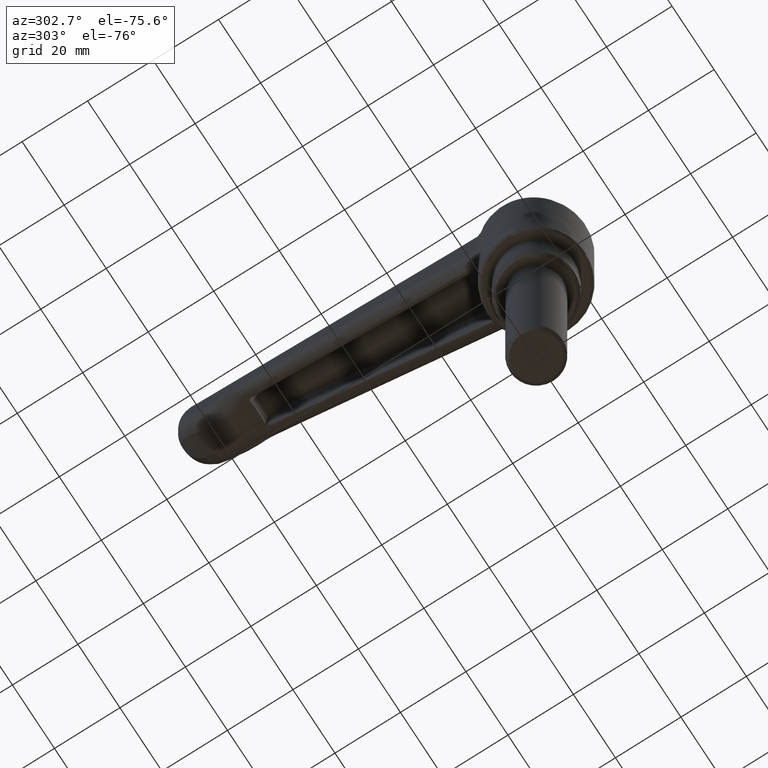
[diagram: clean part render]
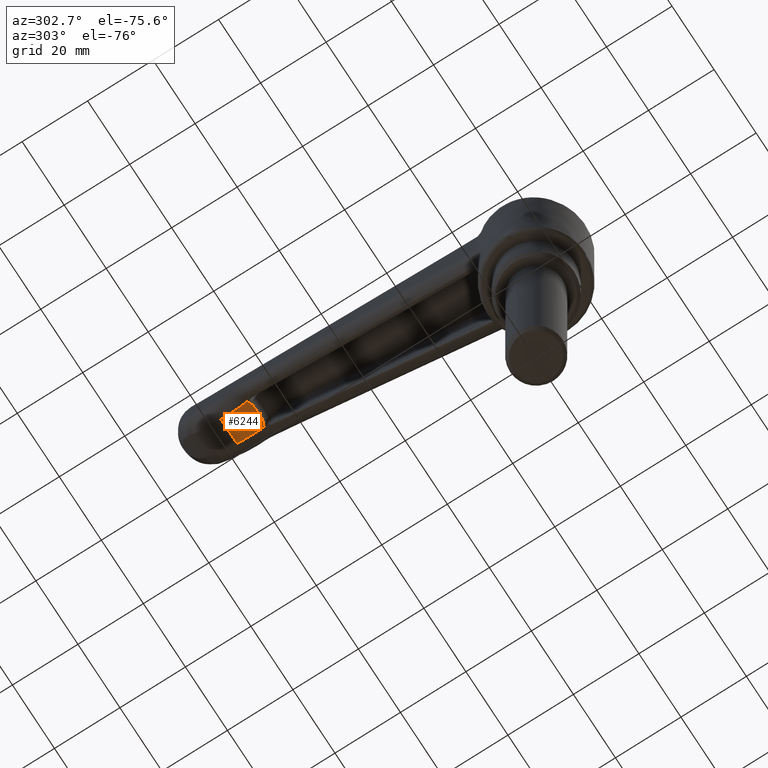
[diagram: same view with one face highlighted and labeled with its STEP entity id]
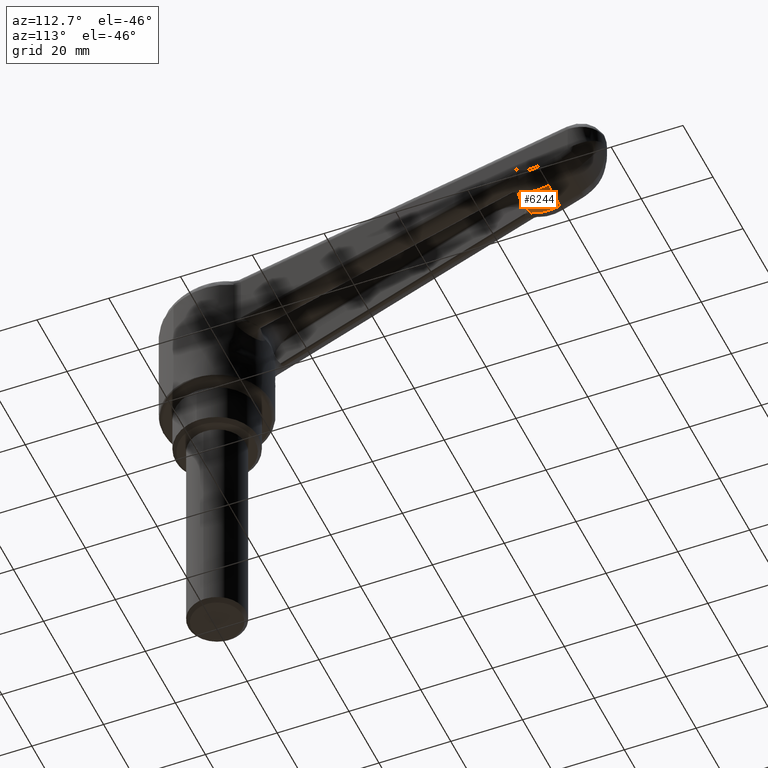
[diagram: same view with one face highlighted and labeled with its STEP entity id]
A machine part, auxiliary view. The second image highlights one B-rep face of the part: STEP entity #6244.
A second angle (auxiliary view) of the same face is appended — the face is thin or edge-on in the first view.
In plain terms, the highlighted face is a freeform B-spline surface patch.
Its self-contained STEP definition (entity closure, byte-faithful):
#3456=CARTESIAN_POINT('',(85.0,1.201644101867850,58.388900999999798));
#3457=VERTEX_POINT('',#3456);
#3492=CARTESIAN_POINT('',(85.741499314340089,4.000598507765585,57.949332688269699));
#3493=VERTEX_POINT('',#3492);
#3503=CARTESIAN_POINT('',(85.0,1.201644101867850,58.388900999999798));
#3504=CARTESIAN_POINT('',(85.000000000000043,1.451121176060211,58.388900999999798));
#3505=CARTESIAN_POINT('',(85.016955119159221,1.697174583661097,58.377771616391207));
#3506=CARTESIAN_POINT('',(85.081682559562026,2.183129487519399,58.336068303143357));
#3507=CARTESIAN_POINT('',(85.129489071883469,2.423024588029788,58.305477553822683));
#3508=CARTESIAN_POINT('',(85.208497654756385,2.719173198140331,58.256449377987842));
#3509=CARTESIAN_POINT('',(85.225299174459167,2.778314436492452,58.246084512044440));
#3510=CARTESIAN_POINT('',(85.260665901689535,2.895590539176088,58.224426281121467));
#3511=CARTESIAN_POINT('',(85.316366282363859,3.070053622154440,58.190543130986583));
#3512=CARTESIAN_POINT('',(85.379900632437938,3.240277676752761,58.152741665418638));
#3513=CARTESIAN_POINT('',(85.471475365326853,3.463626842031907,58.099308533133510));
#3514=CARTESIAN_POINT('',(85.520694991998582,3.573492660032919,58.071075672292523));
#3515=CARTESIAN_POINT('',(85.599662556134064,3.735662336654799,58.026781895160930));
#3516=CARTESIAN_POINT('',(85.640431730535113,3.816089541459113,58.004148847822371));
#3517=CARTESIAN_POINT('',(85.683133268000944,3.895543607136959,57.980849040560827));
#3518=CARTESIAN_POINT('',(85.712031147643245,3.948298112911730,57.965174726428437));
#3519=CARTESIAN_POINT('',(85.726829787830951,3.974742762444273,57.957195021647429));
#3520=CARTESIAN_POINT('',(85.741499314340089,4.000598507765571,57.949332688269699));
#3521=B_SPLINE_CURVE_WITH_KNOTS('',3,(#3503,#3504,#3505,#3506,#3507,#3508,#3509,#3510,#3511,#3512,#3513,#3514,#3515,#3516,#3517,#3518,#3519,#3520),.UNSPECIFIED.,.F.,.U.,(4,2,2,2,1,2,2,1,2,4),(0.0,0.250000000000006,0.500000000000011,0.562500000000010,0.625000000000010,0.750000000000010,0.875000000000010,0.937500000000009,0.968750000000004,1.0),.UNSPECIFIED.);
#3522=EDGE_CURVE('',#3457,#3493,#3521,.T.);
#3875=CARTESIAN_POINT('',(85.0,-1.201644101863964,58.388900999999798));
#3876=VERTEX_POINT('',#3875);
#3886=CARTESIAN_POINT('',(85.741499314340089,-4.000598507765695,57.949332688269600));
#3887=VERTEX_POINT('',#3886);
#3888=CARTESIAN_POINT('',(85.741499314340089,-4.000598507765690,57.949332688269699));
#3889=CARTESIAN_POINT('',(85.726831457649666,-3.974745705579550,57.957194126685238));
#3890=CARTESIAN_POINT('',(85.712030985142320,-3.948297835102516,57.965174812830888));
#3891=CARTESIAN_POINT('',(85.683131795941307,-3.895540900953761,57.980849840750132));
#3892=CARTESIAN_POINT('',(85.640428055189929,-3.816082618768670,58.004150860715619));
#3893=CARTESIAN_POINT('',(85.599656035218189,-3.735649426008141,58.026785518551009));
#3894=CARTESIAN_POINT('',(85.520682124237595,-3.573465272531307,58.071082958505372));
#3895=CARTESIAN_POINT('',(85.471457390090677,-3.463586472941752,58.099318855226713));
#3896=CARTESIAN_POINT('',(85.379871791955196,-3.240203861350939,58.152758660012168));
#3897=CARTESIAN_POINT('',(85.316328801012943,-3.069949113923967,58.190565582130432));
#3898=CARTESIAN_POINT('',(85.260620393700506,-2.895445807174596,58.224454012982548));
#3899=CARTESIAN_POINT('',(85.225248622767012,-2.778140617710774,58.246115606545729));
#3900=CARTESIAN_POINT('',(85.208453431806277,-2.719013684954871,58.256476720342619));
#3901=CARTESIAN_POINT('',(85.129471815726376,-2.422934875726494,58.305488662057918));
#3902=CARTESIAN_POINT('',(85.081675096827354,-2.183081118827489,58.336073094417152));
#3903=CARTESIAN_POINT('',(85.016956376868222,-1.697176366080501,58.377770822961807));
#3904=CARTESIAN_POINT('',(84.999999999999901,-1.451131834169450,58.388900999999898));
#3905=CARTESIAN_POINT('',(85.0,-1.201644101863964,58.388900999999798));
#3906=B_SPLINE_CURVE_WITH_KNOTS('',3,(#3888,#3889,#3890,#3891,#3892,#3893,#3894,#3895,#3896,#3897,#3898,#3899,#3900,#3901,#3902,#3903,#3904,#3905),.UNSPECIFIED.,.F.,.U.,(4,2,1,2,2,1,2,2,2,4),(0.0,0.031250000000006,0.062500000000012,0.125000000000016,0.250000000000016,0.375000000000016,0.437500000000014,0.500000000000012,0.750000000000006,1.0),.UNSPECIFIED.);
#3907=EDGE_CURVE('',#3887,#3876,#3906,.T.);
#5166=CARTESIAN_POINT('',(85.0,1.201644101867850,58.388900999999798));
#5167=CARTESIAN_POINT('',(85.0,-1.201644101863964,58.388900999999798));
#5168=QUASI_UNIFORM_CURVE('',1,(#5166,#5167),.UNSPECIFIED.,.F.,.U.);
#5169=EDGE_CURVE('',#3457,#3876,#5168,.T.);
#5277=CARTESIAN_POINT('',(93.885614088630305,-3.811508412570725,57.366287896852100));
#5278=VERTEX_POINT('',#5277);
#5279=CARTESIAN_POINT('',(93.885614088630362,-3.811508412570730,57.366287896852100));
#5280=CARTESIAN_POINT('',(89.683184063512030,-3.909080452690840,55.836732833829203));
#5281=CARTESIAN_POINT('',(85.741499314340231,-4.000598507765696,57.949332688269600));
#5289=(BOUNDED_CURVE()B_SPLINE_CURVE(2,(#5279,#5280,#5281),.UNSPECIFIED.,.F.,.U.)CURVE()GEOMETRIC_REPRESENTATION_ITEM()QUASI_UNIFORM_CURVE()RATIONAL_B_SPLINE_CURVE((1.0,0.912871093466098,1.0))REPRESENTATION_ITEM(''));
#5290=EDGE_CURVE('',#5278,#3887,#5289,.T.);
#6080=CARTESIAN_POINT('',(93.885614088630305,3.811508412570565,57.366287896852100));
#6081=VERTEX_POINT('',#6080);
#6158=CARTESIAN_POINT('',(85.741499314340047,4.000598507765591,57.949332688269699));
#6159=CARTESIAN_POINT('',(89.683184063511874,3.909080452690733,55.836732833829167));
#6160=CARTESIAN_POINT('',(93.885614088630305,3.811508412570621,57.366287896852079));
#6168=(BOUNDED_CURVE()B_SPLINE_CURVE(2,(#6158,#6159,#6160),.UNSPECIFIED.,.F.,.U.)CURVE()GEOMETRIC_REPRESENTATION_ITEM()QUASI_UNIFORM_CURVE()RATIONAL_B_SPLINE_CURVE((1.0,0.912871093466079,1.0))REPRESENTATION_ITEM(''));
#6169=EDGE_CURVE('',#3493,#6081,#6168,.T.);
#6218=CARTESIAN_POINT('',(94.130425007933269,4.200628433153868,57.459038199701162));
#6219=CARTESIAN_POINT('',(94.130425007933269,-4.205629181288684,57.459038199701162));
#6220=CARTESIAN_POINT('',(89.059070008291627,4.200628433153869,55.461383728504920));
#6221=CARTESIAN_POINT('',(89.059070008291627,-4.205629181288685,55.461383728504920));
#6222=CARTESIAN_POINT('',(84.631950608862894,4.200628433153868,58.640987279560029));
#6223=CARTESIAN_POINT('',(84.631950608862894,-4.205629181288683,58.640987279560029));
#6231=(BOUNDED_SURFACE()B_SPLINE_SURFACE(1,2,((#6218,#6220,#6222),(#6219,#6221,#6223)),.UNSPECIFIED.,.F.,.F.,.U.)B_SPLINE_SURFACE_WITH_KNOTS((2,2),(3,3),(0.0,8.406257614442552),(0.0,10.193307727435050),.UNSPECIFIED.)GEOMETRIC_REPRESENTATION_ITEM()RATIONAL_B_SPLINE_SURFACE(((1.0,0.876452892359483,0.996387235560807),(1.0,0.876452892359483,0.996387235560807)))REPRESENTATION_ITEM('')SURFACE());
#6232=ORIENTED_EDGE('',*,*,#5290,.T.);
#6233=ORIENTED_EDGE('',*,*,#3907,.T.);
#6234=ORIENTED_EDGE('',*,*,#5169,.F.);
#6235=ORIENTED_EDGE('',*,*,#3522,.T.);
#6236=ORIENTED_EDGE('',*,*,#6169,.T.);
#6237=CARTESIAN_POINT('',(93.885614088630305,-3.811508412570725,57.366287896852100));
#6238=CARTESIAN_POINT('',(93.885614088630305,3.811508412570565,57.366287896852100));
#6239=QUASI_UNIFORM_CURVE('',1,(#6237,#6238),.UNSPECIFIED.,.F.,.U.);
#6240=EDGE_CURVE('',#5278,#6081,#6239,.T.);
#6241=ORIENTED_EDGE('',*,*,#6240,.F.);
#6242=EDGE_LOOP('',(#6232,#6233,#6234,#6235,#6236,#6241));
#6243=FACE_OUTER_BOUND('',#6242,.T.);
#6244=ADVANCED_FACE('',(#6243),#6231,.T.);